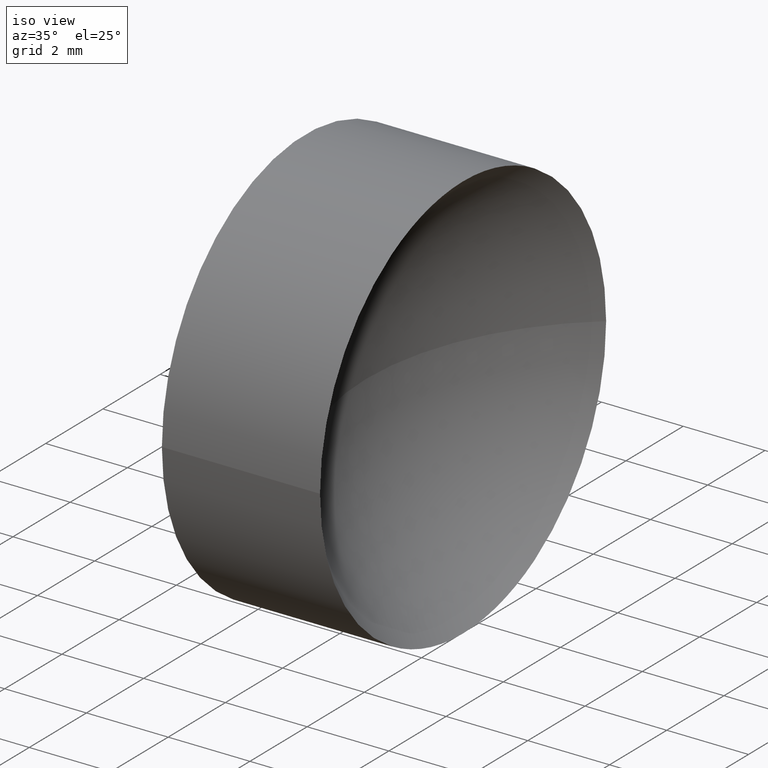
[diagram: clean part render]
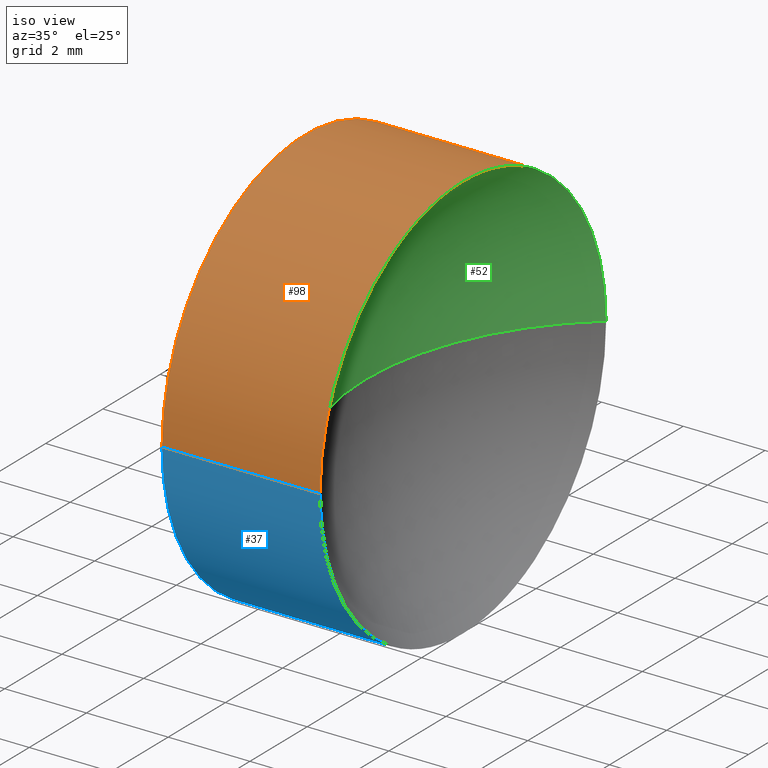
[diagram: same view with three faces highlighted in distinct colors, each labeled with its STEP entity id]
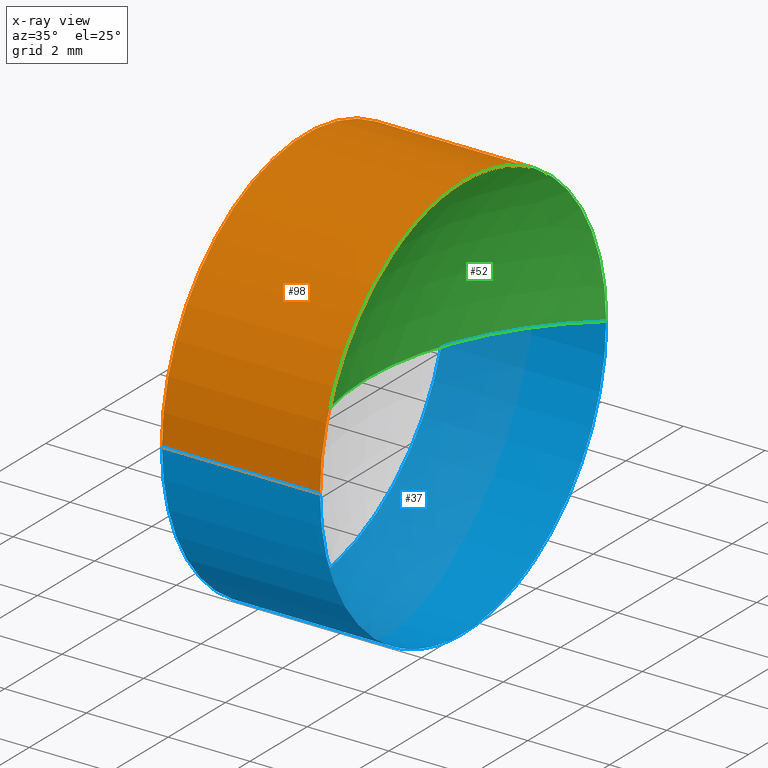
[diagram: x-ray of the same camera — body ghosted, the three highlighted faces saturated]
A machine part, iso view with three faces highlighted in distinct colors.
The next image is the same camera in x-ray (body ghosted, the three faces saturated) — at least one of them is partly hidden behind the body in this view.
Their STEP definitions:

[orange] entity #98 — the highlighted cylindrical surface (partial cylindrical patch) has radius 5 mm, axis along (-1, 0, -0).
#1 = DIRECTION ( 'NONE',  ( -1.000000000000000000, 3.159171411554934600E-016, -0.0000000000000000000 ) ) ;
#20 = EDGE_CURVE ( 'NONE', #105, #61, #152, .T. ) ;
#25 = DIRECTION ( 'NONE',  ( 0.0000000000000000000, -1.000000000000000000, 0.0000000000000000000 ) ) ;
#28 = VECTOR ( 'NONE', #103, 1000.000000000000000 ) ;
#29 = AXIS2_PLACEMENT_3D ( 'NONE', #156, #124, #69 ) ;
#35 = AXIS2_PLACEMENT_3D ( 'NONE', #83, #67, #96 ) ;
#36 = CARTESIAN_POINT ( 'NONE',  ( 26.29380420313851700, 18.03112609140304600, 6.123233995736769200E-016 ) ) ;
#38 = CARTESIAN_POINT ( 'NONE',  ( 21.50597511808246100, 18.03112609140304200, 6.123233995736768300E-016 ) ) ;
#47 = EDGE_CURVE ( 'NONE', #104, #105, #79, .T. ) ;
#51 = CARTESIAN_POINT ( 'NONE',  ( 22.42423205362066000, 8.031126091403040200, 0.0000000000000000000 ) ) ;
#56 = CARTESIAN_POINT ( 'NONE',  ( 21.50597511808246100, 8.031126091403040200, 0.0000000000000000000 ) ) ;
#61 = VERTEX_POINT ( 'NONE', #107 ) ;
#62 = AXIS2_PLACEMENT_3D ( 'NONE', #64, #138, #25 ) ;
#64 = CARTESIAN_POINT ( 'NONE',  ( 21.50597511808246100, 13.03112609140304200, 0.0000000000000000000 ) ) ;
#66 = ORIENTED_EDGE ( 'NONE', *, *, #130, .F. ) ;
#67 = DIRECTION ( 'NONE',  ( -1.000000000000000000, 3.159171411554934600E-016, -0.0000000000000000000 ) ) ;
#69 = DIRECTION ( 'NONE',  ( 0.0000000000000000000, -1.000000000000000000, 0.0000000000000000000 ) ) ;
#79 = CIRCLE ( 'NONE', #29, 5.000000000000002700 ) ;
#81 = ORIENTED_EDGE ( 'NONE', *, *, #118, .F. ) ;
#83 = CARTESIAN_POINT ( 'NONE',  ( 22.42423205362066000, 13.03112609140304200, 0.0000000000000000000 ) ) ;
#88 = FACE_OUTER_BOUND ( 'NONE', #166, .T. ) ;
#93 = LINE ( 'NONE', #56, #28 ) ;
#96 = DIRECTION ( 'NONE',  ( 0.0000000000000000000, -1.000000000000000000, 0.0000000000000000000 ) ) ;
#98 = ADVANCED_FACE ( 'NONE', ( #88 ), #108, .T. ) ;
#103 = DIRECTION ( 'NONE',  ( -1.000000000000000000, 3.159171411554934600E-016, -0.0000000000000000000 ) ) ;
#104 = VERTEX_POINT ( 'NONE', #120 ) ;
#105 = VERTEX_POINT ( 'NONE', #36 ) ;
#107 = CARTESIAN_POINT ( 'NONE',  ( 22.42423205362066000, 18.03112609140304200, 6.123233995736768300E-016 ) ) ;
#108 = CYLINDRICAL_SURFACE ( 'NONE', #62, 5.000000000000000900 ) ;
#114 = CIRCLE ( 'NONE', #35, 5.000000000000000900 ) ;
#115 = VERTEX_POINT ( 'NONE', #51 ) ;
#116 = VECTOR ( 'NONE', #1, 1000.000000000000000 ) ;
#118 = EDGE_CURVE ( 'NONE', #115, #61, #114, .T. ) ;
#120 = CARTESIAN_POINT ( 'NONE',  ( 26.29380420313851700, 8.031126091403036700, 0.0000000000000000000 ) ) ;
#124 = DIRECTION ( 'NONE',  ( -1.000000000000000000, 3.159171411554934600E-016, -0.0000000000000000000 ) ) ;
#130 = EDGE_CURVE ( 'NONE', #104, #115, #93, .T. ) ;
#132 = ORIENTED_EDGE ( 'NONE', *, *, #20, .T. ) ;
#138 = DIRECTION ( 'NONE',  ( -1.000000000000000000, 3.159171411554934600E-016, -0.0000000000000000000 ) ) ;
#152 = LINE ( 'NONE', #38, #116 ) ;
#156 = CARTESIAN_POINT ( 'NONE',  ( 26.29380420313851700, 13.03112609140304000, 0.0000000000000000000 ) ) ;
#161 = ORIENTED_EDGE ( 'NONE', *, *, #47, .T. ) ;
#166 = EDGE_LOOP ( 'NONE', ( #161, #132, #81, #66 ) ) ;

[blue] entity #37 — the highlighted cylindrical surface (partial cylindrical patch) has radius 5 mm, axis along (-1, 0, -0).
#1 = DIRECTION ( 'NONE',  ( -1.000000000000000000, 3.159171411554934600E-016, -0.0000000000000000000 ) ) ;
#6 = EDGE_CURVE ( 'NONE', #61, #115, #154, .T. ) ;
#9 = CIRCLE ( 'NONE', #74, 5.000000000000002700 ) ;
#11 = EDGE_CURVE ( 'NONE', #105, #104, #9, .T. ) ;
#12 = CARTESIAN_POINT ( 'NONE',  ( 22.42423205362066000, 13.03112609140304200, 0.0000000000000000000 ) ) ;
#20 = EDGE_CURVE ( 'NONE', #105, #61, #152, .T. ) ;
#28 = VECTOR ( 'NONE', #103, 1000.000000000000000 ) ;
#36 = CARTESIAN_POINT ( 'NONE',  ( 26.29380420313851700, 18.03112609140304600, 6.123233995736769200E-016 ) ) ;
#37 = ADVANCED_FACE ( 'NONE', ( #140 ), #60, .T. ) ;
#38 = CARTESIAN_POINT ( 'NONE',  ( 21.50597511808246100, 18.03112609140304200, 6.123233995736768300E-016 ) ) ;
#42 = EDGE_LOOP ( 'NONE', ( #128, #159, #112, #141 ) ) ;
#43 = AXIS2_PLACEMENT_3D ( 'NONE', #12, #149, #63 ) ;
#51 = CARTESIAN_POINT ( 'NONE',  ( 22.42423205362066000, 8.031126091403040200, 0.0000000000000000000 ) ) ;
#56 = CARTESIAN_POINT ( 'NONE',  ( 21.50597511808246100, 8.031126091403040200, 0.0000000000000000000 ) ) ;
#60 = CYLINDRICAL_SURFACE ( 'NONE', #162, 5.000000000000000900 ) ;
#61 = VERTEX_POINT ( 'NONE', #107 ) ;
#63 = DIRECTION ( 'NONE',  ( 0.0000000000000000000, -1.000000000000000000, 0.0000000000000000000 ) ) ;
#74 = AXIS2_PLACEMENT_3D ( 'NONE', #122, #95, #146 ) ;
#80 = DIRECTION ( 'NONE',  ( -1.000000000000000000, 3.159171411554934600E-016, -0.0000000000000000000 ) ) ;
#93 = LINE ( 'NONE', #56, #28 ) ;
#95 = DIRECTION ( 'NONE',  ( -1.000000000000000000, 3.159171411554934600E-016, -0.0000000000000000000 ) ) ;
#103 = DIRECTION ( 'NONE',  ( -1.000000000000000000, 3.159171411554934600E-016, -0.0000000000000000000 ) ) ;
#104 = VERTEX_POINT ( 'NONE', #120 ) ;
#105 = VERTEX_POINT ( 'NONE', #36 ) ;
#107 = CARTESIAN_POINT ( 'NONE',  ( 22.42423205362066000, 18.03112609140304200, 6.123233995736768300E-016 ) ) ;
#112 = ORIENTED_EDGE ( 'NONE', *, *, #130, .T. ) ;
#115 = VERTEX_POINT ( 'NONE', #51 ) ;
#116 = VECTOR ( 'NONE', #1, 1000.000000000000000 ) ;
#120 = CARTESIAN_POINT ( 'NONE',  ( 26.29380420313851700, 8.031126091403036700, 0.0000000000000000000 ) ) ;
#122 = CARTESIAN_POINT ( 'NONE',  ( 26.29380420313851700, 13.03112609140304000, 0.0000000000000000000 ) ) ;
#128 = ORIENTED_EDGE ( 'NONE', *, *, #20, .F. ) ;
#130 = EDGE_CURVE ( 'NONE', #104, #115, #93, .T. ) ;
#139 = DIRECTION ( 'NONE',  ( 0.0000000000000000000, -1.000000000000000000, 0.0000000000000000000 ) ) ;
#140 = FACE_OUTER_BOUND ( 'NONE', #42, .T. ) ;
#141 = ORIENTED_EDGE ( 'NONE', *, *, #6, .F. ) ;
#145 = CARTESIAN_POINT ( 'NONE',  ( 21.50597511808246100, 13.03112609140304200, 0.0000000000000000000 ) ) ;
#146 = DIRECTION ( 'NONE',  ( 0.0000000000000000000, -1.000000000000000000, 0.0000000000000000000 ) ) ;
#149 = DIRECTION ( 'NONE',  ( -1.000000000000000000, 3.159171411554934600E-016, -0.0000000000000000000 ) ) ;
#152 = LINE ( 'NONE', #38, #116 ) ;
#154 = CIRCLE ( 'NONE', #43, 5.000000000000000900 ) ;
#159 = ORIENTED_EDGE ( 'NONE', *, *, #11, .T. ) ;
#162 = AXIS2_PLACEMENT_3D ( 'NONE', #145, #80, #139 ) ;

[green] entity #52 — the highlighted spherical surface has radius 6.46 mm.
#3 = DIRECTION ( 'NONE',  ( -3.868869157118576300E-032, -1.224646799147353200E-016, 1.000000000000000000 ) ) ;
#5 = DIRECTION ( 'NONE',  ( 0.0000000000000000000, -0.0000000000000000000, -1.000000000000000000 ) ) ;
#8 = CIRCLE ( 'NONE', #165, 6.460000000000000900 ) ;
#10 = EDGE_CURVE ( 'NONE', #105, #77, #127, .T. ) ;
#15 = ORIENTED_EDGE ( 'NONE', *, *, #16, .T. ) ;
#16 = EDGE_CURVE ( 'NONE', #104, #77, #8, .T. ) ;
#17 = ORIENTED_EDGE ( 'NONE', *, *, #47, .F. ) ;
#21 = ORIENTED_EDGE ( 'NONE', *, *, #10, .F. ) ;
#26 = DIRECTION ( 'NONE',  ( -5.370660916336863500E-016, -1.000000000000000000, 0.0000000000000000000 ) ) ;
#27 = DIRECTION ( 'NONE',  ( -1.000000000000000000, 0.0000000000000000000, 0.0000000000000000000 ) ) ;
#29 = AXIS2_PLACEMENT_3D ( 'NONE', #156, #124, #69 ) ;
#36 = CARTESIAN_POINT ( 'NONE',  ( 26.29380420313851700, 18.03112609140304600, 6.123233995736769200E-016 ) ) ;
#47 = EDGE_CURVE ( 'NONE', #104, #105, #79, .T. ) ;
#52 = ADVANCED_FACE ( 'NONE', ( #76 ), #117, .F. ) ;
#58 = AXIS2_PLACEMENT_3D ( 'NONE', #99, #106, #26 ) ;
#65 = DIRECTION ( 'NONE',  ( 0.0000000000000000000, -1.000000000000000000, -1.224646799147353200E-016 ) ) ;
#69 = DIRECTION ( 'NONE',  ( 0.0000000000000000000, -1.000000000000000000, 0.0000000000000000000 ) ) ;
#76 = FACE_OUTER_BOUND ( 'NONE', #133, .T. ) ;
#77 = VERTEX_POINT ( 'NONE', #137 ) ;
#79 = CIRCLE ( 'NONE', #29, 5.000000000000002700 ) ;
#85 = CARTESIAN_POINT ( 'NONE',  ( 30.38423205362066100, 13.03112609140304000, 0.0000000000000000000 ) ) ;
#99 = CARTESIAN_POINT ( 'NONE',  ( 30.38423205362066100, 13.03112609140304000, 0.0000000000000000000 ) ) ;
#104 = VERTEX_POINT ( 'NONE', #120 ) ;
#105 = VERTEX_POINT ( 'NONE', #36 ) ;
#106 = DIRECTION ( 'NONE',  ( 0.0000000000000000000, 0.0000000000000000000, 1.000000000000000000 ) ) ;
#117 = SPHERICAL_SURFACE ( 'NONE', #58, 6.460000000000000900 ) ;
#120 = CARTESIAN_POINT ( 'NONE',  ( 26.29380420313851700, 8.031126091403036700, 0.0000000000000000000 ) ) ;
#124 = DIRECTION ( 'NONE',  ( -1.000000000000000000, 3.159171411554934600E-016, -0.0000000000000000000 ) ) ;
#126 = CARTESIAN_POINT ( 'NONE',  ( 30.38423205362066100, 13.03112609140304000, 0.0000000000000000000 ) ) ;
#127 = CIRCLE ( 'NONE', #157, 6.460000000000000900 ) ;
#133 = EDGE_LOOP ( 'NONE', ( #21, #17, #15 ) ) ;
#137 = CARTESIAN_POINT ( 'NONE',  ( 23.92423205362066000, 13.03112609140304200, 0.0000000000000000000 ) ) ;
#156 = CARTESIAN_POINT ( 'NONE',  ( 26.29380420313851700, 13.03112609140304000, 0.0000000000000000000 ) ) ;
#157 = AXIS2_PLACEMENT_3D ( 'NONE', #126, #3, #65 ) ;
#165 = AXIS2_PLACEMENT_3D ( 'NONE', #85, #5, #27 ) ;